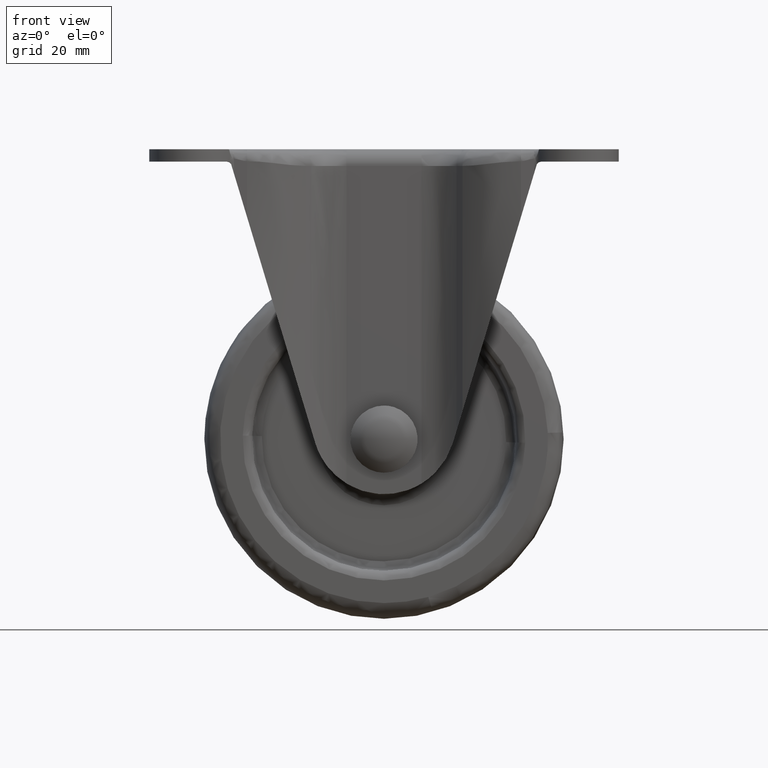
[diagram: clean part render]
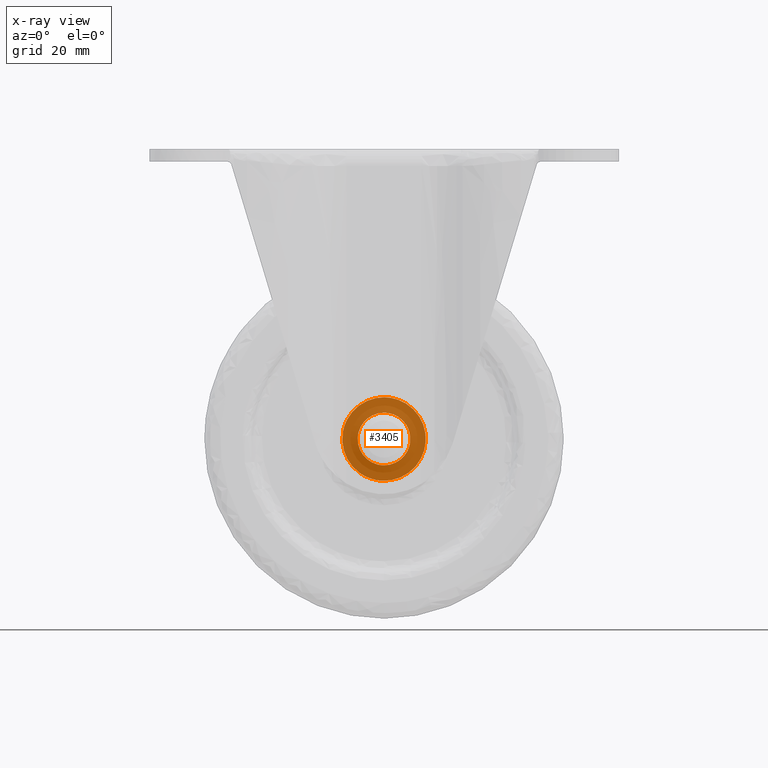
[diagram: x-ray — body ghosted, one internal face saturated and labeled with its STEP entity id]
A machine part, front view, then the same camera in x-ray: the body is ghosted and one INTERNAL B-rep face — a face not visible from any outside direction — is saturated and labeled: STEP entity #3405.
In plain terms, the highlighted face is a freeform B-spline surface patch.
Its self-contained STEP definition (entity closure, byte-faithful):
#66=CARTESIAN_POINT('',(5.461552394992918,15.250000000000000,-61.149188290673138));
#67=VERTEX_POINT('',#66);
#68=CARTESIAN_POINT('',(0.0,15.250000000000000,-55.0));
#69=VERTEX_POINT('',#68);
#70=CARTESIAN_POINT('',(5.461552394992917,15.249999999999998,-61.149188290673145));
#71=CARTESIAN_POINT('',(5.500000000000000,15.250000000000004,-60.825732658147125));
#72=CARTESIAN_POINT('',(5.500000000000000,15.250000000000000,-60.500000000000000));
#73=CARTESIAN_POINT('',(5.500000000000001,15.249999999999998,-55.000000000000007));
#74=CARTESIAN_POINT('',(0.0,15.250000000000000,-55.0));
#82=(BOUNDED_CURVE()B_SPLINE_CURVE(2,(#70,#71,#72,#73,#74),.UNSPECIFIED.,.F.,.U.)B_SPLINE_CURVE_WITH_KNOTS((3,2,3),(0.229562473511871,0.250000000000000,0.500000000000000),.UNSPECIFIED.)CURVE()GEOMETRIC_REPRESENTATION_ITEM()RATIONAL_B_SPLINE_CURVE((0.956026754180490,0.976055948329227,1.0,0.707106781186548,1.0))REPRESENTATION_ITEM(''));
#83=EDGE_CURVE('',#67,#69,#82,.T.);
#124=CARTESIAN_POINT('',(-5.489741391310554,15.250000000000000,-60.164233032399473));
#125=VERTEX_POINT('',#124);
#131=CARTESIAN_POINT('',(0.0,15.250000000000000,-55.0));
#132=CARTESIAN_POINT('',(-5.173883367681380,15.249999999999995,-55.0));
#133=CARTESIAN_POINT('',(-5.489741391310553,15.249999999999998,-60.164233032399473));
#141=(BOUNDED_CURVE()B_SPLINE_CURVE(2,(#131,#132,#133),.UNSPECIFIED.,.F.,.U.)B_SPLINE_CURVE_WITH_KNOTS((3,3),(0.500000000000000,0.739332962231984),.UNSPECIFIED.)CURVE()GEOMETRIC_REPRESENTATION_ITEM()RATIONAL_B_SPLINE_CURVE((1.0,0.719603993294863,0.976072041651803))REPRESENTATION_ITEM(''));
#142=EDGE_CURVE('',#69,#125,#141,.T.);
#165=CARTESIAN_POINT('',(0.0,15.250000000000000,-66.0));
#166=VERTEX_POINT('',#165);
#167=CARTESIAN_POINT('',(0.0,15.250000000000000,-66.0));
#168=CARTESIAN_POINT('',(4.884959892622693,15.250000000000000,-66.0));
#169=CARTESIAN_POINT('',(5.461552394992918,15.250000000000004,-61.149188290673145));
#177=(BOUNDED_CURVE()B_SPLINE_CURVE(2,(#167,#168,#169),.UNSPECIFIED.,.F.,.U.)B_SPLINE_CURVE_WITH_KNOTS((3,3),(0.0,0.229562473511871),.UNSPECIFIED.)CURVE()GEOMETRIC_REPRESENTATION_ITEM()RATIONAL_B_SPLINE_CURVE((1.0,0.731050832857321,0.956026754180490))REPRESENTATION_ITEM(''));
#178=EDGE_CURVE('',#166,#67,#177,.T.);
#180=CARTESIAN_POINT('',(-5.489741391310554,15.250000000000000,-60.164233032399473));
#181=CARTESIAN_POINT('',(-5.499999999999999,15.249999999999996,-60.331959801698495));
#182=CARTESIAN_POINT('',(-5.500000000000000,15.250000000000000,-60.500000000000000));
#183=CARTESIAN_POINT('',(-5.500000000000001,15.249999999999998,-66.0));
#184=CARTESIAN_POINT('',(0.0,15.250000000000000,-66.0));
#192=(BOUNDED_CURVE()B_SPLINE_CURVE(2,(#180,#181,#182,#183,#184),.UNSPECIFIED.,.F.,.U.)B_SPLINE_CURVE_WITH_KNOTS((3,2,3),(0.739332962231985,0.750000000000000,1.0),.UNSPECIFIED.)CURVE()GEOMETRIC_REPRESENTATION_ITEM()RATIONAL_B_SPLINE_CURVE((0.976072041651805,0.987502787891685,1.0,0.707106781186548,1.0))REPRESENTATION_ITEM(''));
#193=EDGE_CURVE('',#125,#166,#192,.T.);
#1621=CARTESIAN_POINT('',(-3.100040653585500,15.250000000000000,-68.638760652339386));
#1622=VERTEX_POINT('',#1621);
#1623=CARTESIAN_POINT('',(0.0,15.250000000000000,-69.209171999999995));
#1624=VERTEX_POINT('',#1623);
#1625=CARTESIAN_POINT('',(-3.100040653585500,15.249999999999998,-68.638760652339386));
#1626=CARTESIAN_POINT('',(-1.602498526747257,15.250000000000000,-69.209171999999995));
#1627=CARTESIAN_POINT('',(0.0,15.250000000000000,-69.209171999999995));
#1635=(BOUNDED_CURVE()B_SPLINE_CURVE(2,(#1625,#1626,#1627),.UNSPECIFIED.,.F.,.U.)B_SPLINE_CURVE_WITH_KNOTS((3,3),(0.939552769324476,1.0),.UNSPECIFIED.)CURVE()GEOMETRIC_REPRESENTATION_ITEM()RATIONAL_B_SPLINE_CURVE((0.892609506575077,0.929181664156346,1.0))REPRESENTATION_ITEM(''));
#1636=EDGE_CURVE('',#1622,#1624,#1635,.T.);
#1638=CARTESIAN_POINT('',(0.0,15.250000000000000,-51.790827999999998));
#1639=VERTEX_POINT('',#1638);
#1640=CARTESIAN_POINT('',(0.0,15.250000000000000,-69.209171999999995));
#1641=CARTESIAN_POINT('',(8.709171999999999,15.250000000000002,-69.209171999999995));
#1642=CARTESIAN_POINT('',(8.709171999999999,15.250000000000000,-60.500000000000000));
#1643=CARTESIAN_POINT('',(8.709171999999999,15.250000000000002,-51.790828000000005));
#1644=CARTESIAN_POINT('',(0.0,15.250000000000000,-51.790827999999998));
#1652=(BOUNDED_CURVE()B_SPLINE_CURVE(2,(#1640,#1641,#1642,#1643,#1644),.UNSPECIFIED.,.F.,.U.)B_SPLINE_CURVE_WITH_KNOTS((3,2,3),(0.0,0.250000000000000,0.500000000000000),.UNSPECIFIED.)CURVE()GEOMETRIC_REPRESENTATION_ITEM()RATIONAL_B_SPLINE_CURVE((1.0,0.707106781186547,1.0,0.707106781186547,1.0))REPRESENTATION_ITEM(''));
#1653=EDGE_CURVE('',#1624,#1639,#1652,.T.);
#1655=CARTESIAN_POINT('',(-8.554908622470943,15.250000000000000,-58.868063901022282));
#1656=VERTEX_POINT('',#1655);
#1657=CARTESIAN_POINT('',(0.0,15.250000000000000,-51.790827999999998));
#1658=CARTESIAN_POINT('',(-7.204853667928362,15.249999999999996,-51.790828000000005));
#1659=CARTESIAN_POINT('',(-8.554908622470943,15.250000000000000,-58.868063901022282));
#1667=(BOUNDED_CURVE()B_SPLINE_CURVE(2,(#1657,#1658,#1659),.UNSPECIFIED.,.F.,.U.)B_SPLINE_CURVE_WITH_KNOTS((3,3),(0.500000000000000,0.717838633733241),.UNSPECIFIED.)CURVE()GEOMETRIC_REPRESENTATION_ITEM()RATIONAL_B_SPLINE_CURVE((1.0,0.744786165535786,0.934335795147618))REPRESENTATION_ITEM(''));
#1668=EDGE_CURVE('',#1639,#1656,#1667,.T.);
#1721=CARTESIAN_POINT('',(-8.554908622470943,15.249999999999996,-58.868063901022282));
#1722=CARTESIAN_POINT('',(-8.709171999999999,15.249999999999998,-59.676740859280606));
#1723=CARTESIAN_POINT('',(-8.709171999999999,15.250000000000000,-60.500000000000000));
#1724=CARTESIAN_POINT('',(-8.709172000000001,15.249999999999995,-66.502251668713768));
#1725=CARTESIAN_POINT('',(-3.100040653585500,15.250000000000004,-68.638760652339386));
#1733=(BOUNDED_CURVE()B_SPLINE_CURVE(2,(#1721,#1722,#1723,#1724,#1725),.UNSPECIFIED.,.F.,.U.)B_SPLINE_CURVE_WITH_KNOTS((3,2,3),(0.717838633733240,0.750000000000000,0.939552769324476),.UNSPECIFIED.)CURVE()GEOMETRIC_REPRESENTATION_ITEM()RATIONAL_B_SPLINE_CURVE((0.934335795147618,0.962320615650761,1.0,0.777925117030202,0.892609506575077))REPRESENTATION_ITEM(''));
#1734=EDGE_CURVE('',#1656,#1622,#1733,.T.);
#3388=CARTESIAN_POINT('',(-9.579190465839574,15.250000000000000,-70.079221457028325));
#3389=CARTESIAN_POINT('',(-9.579190465839574,15.250000000000000,-50.920782436274948));
#3390=CARTESIAN_POINT('',(9.579217394439461,15.250000000000000,-70.079221457028325));
#3391=CARTESIAN_POINT('',(9.579217394439461,15.250000000000000,-50.920782436274948));
#3392=B_SPLINE_SURFACE_WITH_KNOTS('',1,1,((#3388,#3390),(#3389,#3391)),.UNSPECIFIED.,.F.,.F.,.U.,(2,2),(2,2),(0.0,19.158439020753381),(0.0,19.158407860279031),.UNSPECIFIED.);
#3393=ORIENTED_EDGE('',*,*,#1636,.F.);
#3394=ORIENTED_EDGE('',*,*,#1734,.F.);
#3395=ORIENTED_EDGE('',*,*,#1668,.F.);
#3396=ORIENTED_EDGE('',*,*,#1653,.F.);
#3397=EDGE_LOOP('',(#3393,#3394,#3395,#3396));
#3398=FACE_OUTER_BOUND('',#3397,.T.);
#3399=ORIENTED_EDGE('',*,*,#142,.T.);
#3400=ORIENTED_EDGE('',*,*,#193,.T.);
#3401=ORIENTED_EDGE('',*,*,#178,.T.);
#3402=ORIENTED_EDGE('',*,*,#83,.T.);
#3403=EDGE_LOOP('',(#3399,#3400,#3401,#3402));
#3404=FACE_BOUND('',#3403,.T.);
#3405=ADVANCED_FACE('',(#3398,#3404),#3392,.T.);